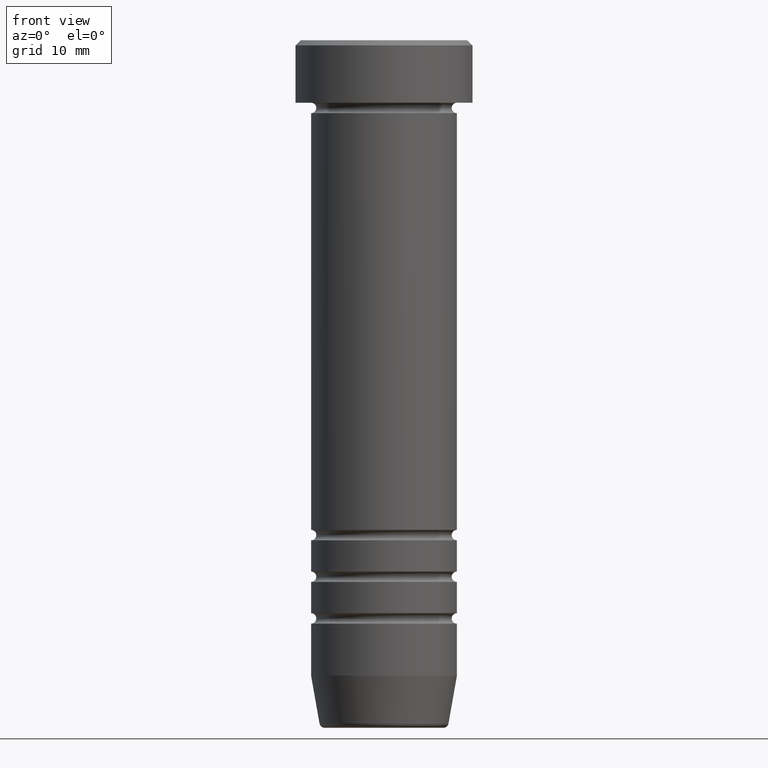
[diagram: clean part render]
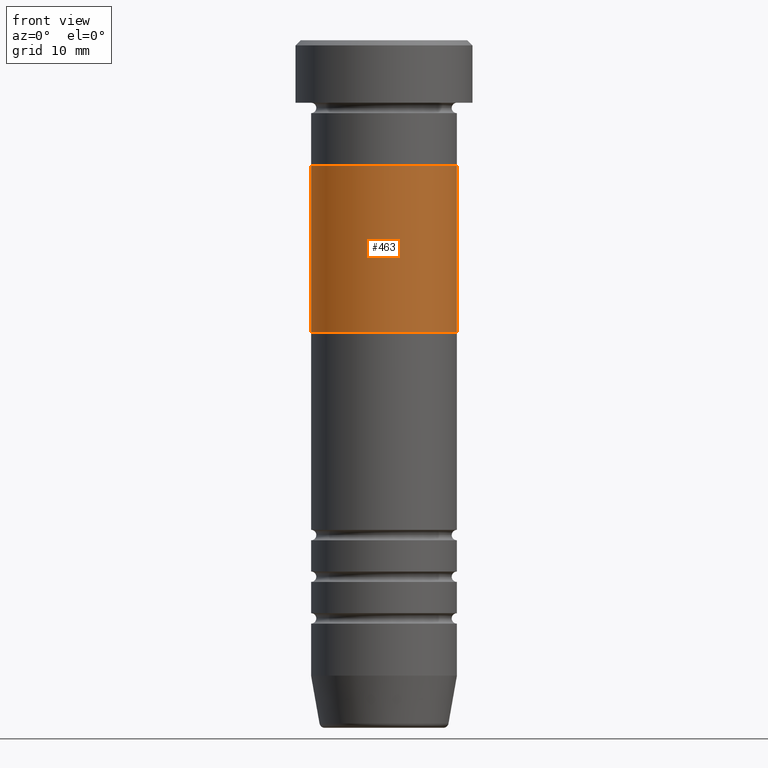
[diagram: same view with one face highlighted and labeled with its STEP entity id]
A machine part, front view. The second image highlights one B-rep face of the part: STEP entity #463.
In plain terms, the highlighted cylindrical surface (partial cylindrical patch) has radius 7 mm, axis along (-0, -0, 1).
Its self-contained STEP definition (entity closure, byte-faithful):
#99 = EDGE_CURVE ( 'NONE', #814, #936, #704, .T. ) ;
#234 = CARTESIAN_POINT ( 'NONE',  ( 0.000000000000000000, 0.000000000000000000, -28.00000000000000000 ) ) ;
#244 = DIRECTION ( 'NONE',  ( -1.000000000000000000, 0.000000000000000000, 0.000000000000000000 ) ) ;
#257 = CARTESIAN_POINT ( 'NONE',  ( 6.999999999999999112, 0.000000000000000000, -28.00000000000000000 ) ) ;
#260 = ORIENTED_EDGE ( 'NONE', *, *, #408, .F. ) ;
#273 = CARTESIAN_POINT ( 'NONE',  ( -6.999999999999999112, 8.572527594031472204E-16, -28.00000000000000000 ) ) ;
#377 = ORIENTED_EDGE ( 'NONE', *, *, #785, .F. ) ;
#405 = DIRECTION ( 'NONE',  ( -1.000000000000000000, 0.000000000000000000, 0.000000000000000000 ) ) ;
#408 = EDGE_CURVE ( 'NONE', #814, #527, #628, .T. ) ;
#420 = AXIS2_PLACEMENT_3D ( 'NONE', #234, #663, #405 ) ;
#444 = DIRECTION ( 'NONE',  ( -0.000000000000000000, -0.000000000000000000, 1.000000000000000000 ) ) ;
#463 = ADVANCED_FACE ( 'NONE', ( #860 ), #509, .T. ) ;
#465 = ORIENTED_EDGE ( 'NONE', *, *, #99, .T. ) ;
#493 = AXIS2_PLACEMENT_3D ( 'NONE', #872, #1126, #1032 ) ;
#502 = CARTESIAN_POINT ( 'NONE',  ( 0.000000000000000000, 0.000000000000000000, -12.00000000000000000 ) ) ;
#509 = CYLINDRICAL_SURFACE ( 'NONE', #493, 6.999999999999999112 ) ;
#527 = VERTEX_POINT ( 'NONE', #273 ) ;
#628 = CIRCLE ( 'NONE', #420, 6.999999999999999112 ) ;
#637 = VERTEX_POINT ( 'NONE', #728 ) ;
#663 = DIRECTION ( 'NONE',  ( 0.000000000000000000, 0.000000000000000000, -1.000000000000000000 ) ) ;
#704 = LINE ( 'NONE', #889, #1101 ) ;
#728 = CARTESIAN_POINT ( 'NONE',  ( -6.999999999999999112, 8.572527594031472204E-16, -12.00000000000000000 ) ) ;
#743 = CIRCLE ( 'NONE', #893, 6.999999999999999112 ) ;
#774 = DIRECTION ( 'NONE',  ( 0.000000000000000000, 0.000000000000000000, -1.000000000000000000 ) ) ;
#785 = EDGE_CURVE ( 'NONE', #527, #637, #963, .T. ) ;
#796 = DIRECTION ( 'NONE',  ( -0.000000000000000000, -0.000000000000000000, 1.000000000000000000 ) ) ;
#814 = VERTEX_POINT ( 'NONE', #257 ) ;
#826 = EDGE_CURVE ( 'NONE', #936, #637, #743, .T. ) ;
#860 = FACE_OUTER_BOUND ( 'NONE', #1099, .T. ) ;
#872 = CARTESIAN_POINT ( 'NONE',  ( 0.000000000000000000, 0.000000000000000000, -28.00000000000000000 ) ) ;
#889 = CARTESIAN_POINT ( 'NONE',  ( 6.999999999999999112, 0.000000000000000000, -28.00000000000000000 ) ) ;
#893 = AXIS2_PLACEMENT_3D ( 'NONE', #502, #774, #244 ) ;
#936 = VERTEX_POINT ( 'NONE', #1067 ) ;
#963 = LINE ( 'NONE', #1129, #1085 ) ;
#1032 = DIRECTION ( 'NONE',  ( 1.000000000000000000, 0.000000000000000000, 0.000000000000000000 ) ) ;
#1067 = CARTESIAN_POINT ( 'NONE',  ( 6.999999999999999112, 0.000000000000000000, -12.00000000000000000 ) ) ;
#1085 = VECTOR ( 'NONE', #796, 1000.000000000000000 ) ;
#1099 = EDGE_LOOP ( 'NONE', ( #377, #260, #465, #1105 ) ) ;
#1101 = VECTOR ( 'NONE', #444, 1000.000000000000000 ) ;
#1105 = ORIENTED_EDGE ( 'NONE', *, *, #826, .T. ) ;
#1126 = DIRECTION ( 'NONE',  ( -0.000000000000000000, -0.000000000000000000, 1.000000000000000000 ) ) ;
#1129 = CARTESIAN_POINT ( 'NONE',  ( -6.999999999999999112, 8.572527594031472204E-16, -28.00000000000000000 ) ) ;